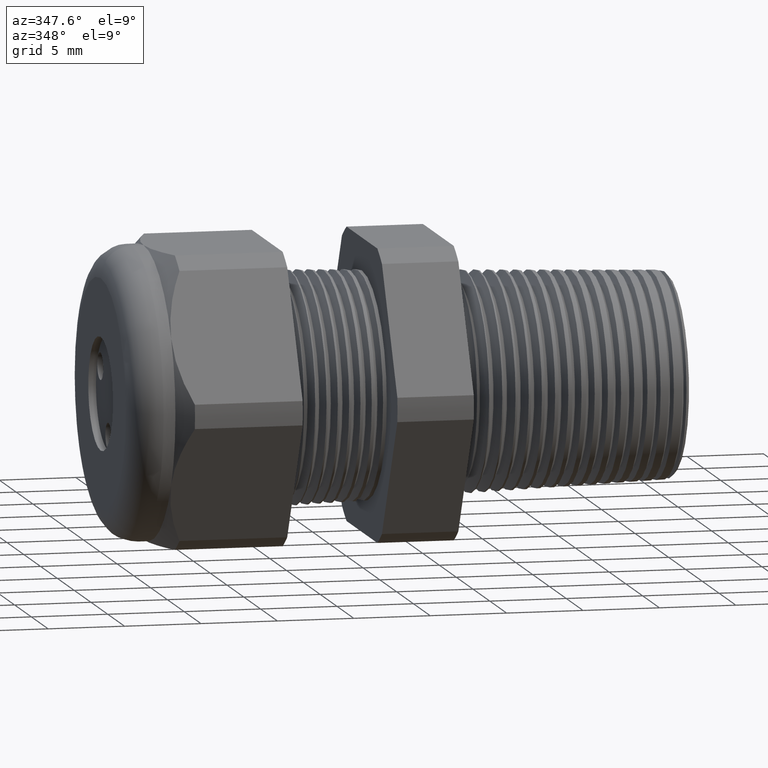
[diagram: clean part render]
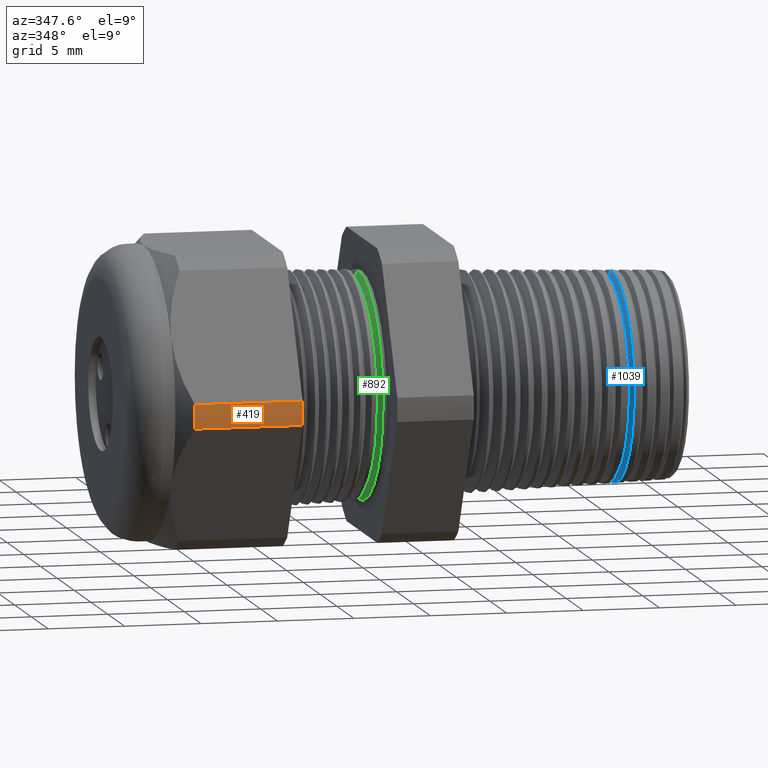
[diagram: same view with three faces highlighted in distinct colors, each labeled with its STEP entity id]
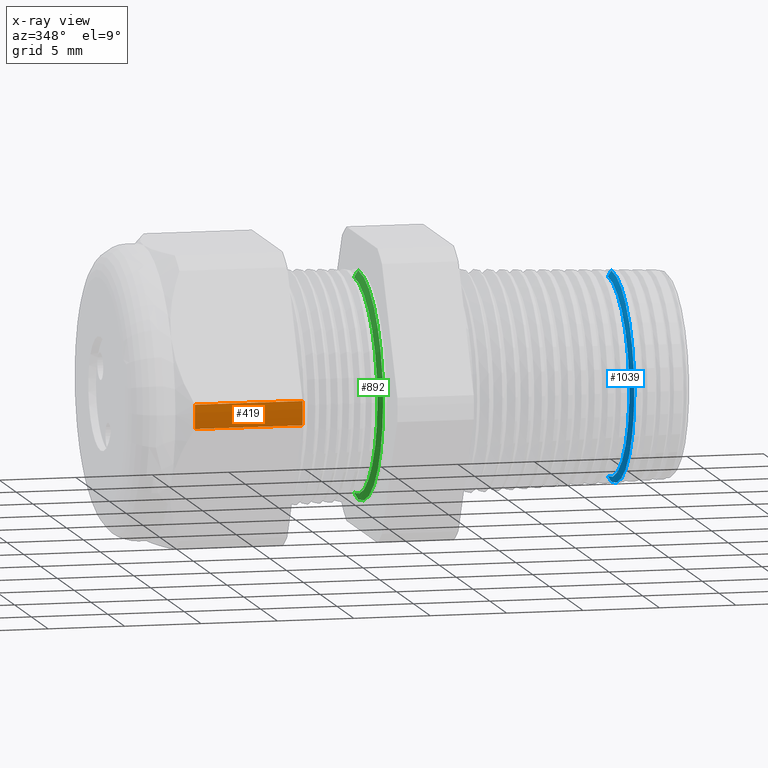
[diagram: x-ray of the same camera — body ghosted, the three highlighted faces saturated]
A machine part, auxiliary view with three faces highlighted in distinct colors.
The next image is the same camera in x-ray (body ghosted, the three faces saturated) — at least one of them is partly hidden behind the body in this view.
Their STEP definitions:

[orange] entity #419 — the highlighted cylindrical surface (partial cylindrical patch) has radius 10.5728 mm, axis along (-1, 0, 0).
#356 = VERTEX_POINT ( 'NONE', #2415 ) ;
#397 = ORIENTED_EDGE ( 'NONE', *, *, #398, .T. ) ;
#398 = EDGE_CURVE ( 'NONE', #5393, #410, #2514, .T. ) ;
#399 = ORIENTED_EDGE ( 'NONE', *, *, #409, .F. ) ;
#400 = ORIENTED_EDGE ( 'NONE', *, *, #401, .F. ) ;
#401 = EDGE_CURVE ( 'NONE', #477, #356, #2495, .T. ) ;
#409 = EDGE_CURVE ( 'NONE', #356, #410, #2532, .T. ) ;
#410 = VERTEX_POINT ( 'NONE', #2528 ) ;
#419 = ADVANCED_FACE ( 'NONE', ( #2564 ), #2563, .T. ) ;
#420 = EDGE_LOOP ( 'NONE', ( #421, #397, #399, #400 ) ) ;
#421 = ORIENTED_EDGE ( 'NONE', *, *, #422, .T. ) ;
#422 = EDGE_CURVE ( 'NONE', #477, #5393, #2562, .T. ) ;
#477 = VERTEX_POINT ( 'NONE', #2681 ) ;
#2415 = CARTESIAN_POINT ( 'NONE',  ( -0.7508661417322833900, -0.4150909474475088000, -0.03104138925901222700 ) ) ;
#2491 = DIRECTION ( 'NONE',  ( 0.0000000000000000000, 0.0000000000000000000, -1.000000000000000000 ) ) ;
#2492 = DIRECTION ( 'NONE',  ( 1.000000000000000000, 0.0000000000000000000, 0.0000000000000000000 ) ) ;
#2493 = CARTESIAN_POINT ( 'NONE',  ( -0.7508661417322833900, 0.0000000000000000000, 0.0000000000000000000 ) ) ;
#2494 = AXIS2_PLACEMENT_3D ( 'NONE', #2493, #2492, #2491 ) ;
#2495 = CIRCLE ( 'NONE', #2494, 0.4162500000000001200 ) ;
#2496 = DIRECTION ( 'NONE',  ( 0.0000000000000000000, 0.0000000000000000000, -1.000000000000000000 ) ) ;
#2497 = DIRECTION ( 'NONE',  ( 1.000000000000000000, 0.0000000000000000000, 0.0000000000000000000 ) ) ;
#2498 = CARTESIAN_POINT ( 'NONE',  ( -1.028513779527559000, 0.0000000000000000000, 0.0000000000000000000 ) ) ;
#2499 = AXIS2_PLACEMENT_3D ( 'NONE', #2498, #2497, #2496 ) ;
#2514 = CIRCLE ( 'NONE', #2499, 0.4162500000000001200 ) ;
#2528 = CARTESIAN_POINT ( 'NONE',  ( -1.028513779527559000, -0.4150909474475088500, -0.03104138925901223400 ) ) ;
#2529 = DIRECTION ( 'NONE',  ( -1.000000000000000000, 0.0000000000000000000, 0.0000000000000000000 ) ) ;
#2530 = VECTOR ( 'NONE', #2529, 39.37007874015748100 ) ;
#2531 = CARTESIAN_POINT ( 'NONE',  ( 0.2800000000000000300, -0.4150909474475088000, -0.03104138925901222700 ) ) ;
#2532 = LINE ( 'NONE', #2531, #2530 ) ;
#2555 = DIRECTION ( 'NONE',  ( -1.000000000000000000, 0.0000000000000000000, 0.0000000000000000000 ) ) ;
#2556 = VECTOR ( 'NONE', #2555, 39.37007874015748100 ) ;
#2557 = CARTESIAN_POINT ( 'NONE',  ( 0.2800000000000000300, -0.4150909474475088500, 0.03104138925901205400 ) ) ;
#2558 = DIRECTION ( 'NONE',  ( 0.0000000000000000000, 0.0000000000000000000, 1.000000000000000000 ) ) ;
#2559 = DIRECTION ( 'NONE',  ( -1.000000000000000000, 0.0000000000000000000, 0.0000000000000000000 ) ) ;
#2560 = CARTESIAN_POINT ( 'NONE',  ( 0.2800000000000000300, 0.0000000000000000000, 0.0000000000000000000 ) ) ;
#2561 = AXIS2_PLACEMENT_3D ( 'NONE', #2560, #2559, #2558 ) ;
#2562 = LINE ( 'NONE', #2557, #2556 ) ;
#2563 = CYLINDRICAL_SURFACE ( 'NONE', #2561, 0.4162500000000001200 ) ;
#2564 = FACE_OUTER_BOUND ( 'NONE', #420, .T. ) ;
#2681 = CARTESIAN_POINT ( 'NONE',  ( -0.7508661417322833900, -0.4150909474475088500, 0.03104138925901205400 ) ) ;
#4985 = CARTESIAN_POINT ( 'NONE',  ( -1.028513779527559000, -0.4150909474475088500, 0.03104138925901204700 ) ) ;
#5393 = VERTEX_POINT ( 'NONE', #4985 ) ;

[blue] entity #1039 — the highlighted conical surface has half-angle 58 deg.
#234 = EDGE_CURVE ( 'NONE', #1338, #1416, #2156, .T. ) ;
#1036 = EDGE_CURVE ( 'NONE', #1413, #1412, #3470, .T. ) ;
#1039 = ADVANCED_FACE ( 'NONE', ( #3466 ), #3465, .T. ) ;
#1040 = EDGE_LOOP ( 'NONE', ( #1041, #1042, #1043, #1096 ) ) ;
#1041 = ORIENTED_EDGE ( 'NONE', *, *, #1415, .F. ) ;
#1042 = ORIENTED_EDGE ( 'NONE', *, *, #1036, .T. ) ;
#1043 = ORIENTED_EDGE ( 'NONE', *, *, #1431, .T. ) ;
#1096 = ORIENTED_EDGE ( 'NONE', *, *, #234, .T. ) ;
#1338 = VERTEX_POINT ( 'NONE', #3996 ) ;
#1412 = VERTEX_POINT ( 'NONE', #4159 ) ;
#1413 = VERTEX_POINT ( 'NONE', #4158 ) ;
#1415 = EDGE_CURVE ( 'NONE', #1413, #1416, #4157, .T. ) ;
#1416 = VERTEX_POINT ( 'NONE', #4153 ) ;
#1431 = EDGE_CURVE ( 'NONE', #1412, #1338, #4198, .T. ) ;
#2152 = DIRECTION ( 'NONE',  ( 0.0000000000000000000, 0.0000000000000000000, -1.000000000000000000 ) ) ;
#2153 = DIRECTION ( 'NONE',  ( -1.000000000000000000, 0.0000000000000000000, 0.0000000000000000000 ) ) ;
#2154 = CARTESIAN_POINT ( 'NONE',  ( 0.1356508413671547200, 0.0000000000000000000, 0.0000000000000000000 ) ) ;
#2155 = AXIS2_PLACEMENT_3D ( 'NONE', #2154, #2153, #2152 ) ;
#2156 = CIRCLE ( 'NONE', #2155, 0.2690421447826712400 ) ;
#3465 = CONICAL_SURFACE ( 'NONE', #3528, 0.2540184132628081100, 1.012290966156729400 ) ;
#3466 = FACE_OUTER_BOUND ( 'NONE', #1040, .T. ) ;
#3467 = DIRECTION ( 'NONE',  ( 0.0000000000000000000, 0.0000000000000000000, -1.000000000000000000 ) ) ;
#3468 = DIRECTION ( 'NONE',  ( 1.000000000000000000, 0.0000000000000000000, 0.0000000000000000000 ) ) ;
#3469 = AXIS2_PLACEMENT_3D ( 'NONE', #3475, #3468, #3467 ) ;
#3470 = CIRCLE ( 'NONE', #3469, 0.2540184132628081100 ) ;
#3475 = CARTESIAN_POINT ( 'NONE',  ( 0.1262629719890789900, 0.0000000000000000000, 0.0000000000000000000 ) ) ;
#3525 = DIRECTION ( 'NONE',  ( 0.0000000000000000000, 0.0000000000000000000, -1.000000000000000000 ) ) ;
#3526 = DIRECTION ( 'NONE',  ( 1.000000000000000000, 0.0000000000000000000, 0.0000000000000000000 ) ) ;
#3527 = CARTESIAN_POINT ( 'NONE',  ( 0.1262629719890789900, 0.0000000000000000000, 0.0000000000000000000 ) ) ;
#3528 = AXIS2_PLACEMENT_3D ( 'NONE', #3527, #3526, #3525 ) ;
#3996 = CARTESIAN_POINT ( 'NONE',  ( 0.1356508413671547200, 3.294816014438371000E-017, -0.2690421447826712400 ) ) ;
#4153 = CARTESIAN_POINT ( 'NONE',  ( 0.1356508413671547200, 0.0000000000000000000, 0.2690421447826712400 ) ) ;
#4154 = DIRECTION ( 'NONE',  ( 0.5299192642331894700, 1.038559386480985500E-016, 0.8480480961564356200 ) ) ;
#4155 = VECTOR ( 'NONE', #4154, 39.37007874015749600 ) ;
#4156 = CARTESIAN_POINT ( 'NONE',  ( 0.1262629719890789900, 3.110828367267874700E-017, 0.2540184132628081100 ) ) ;
#4157 = LINE ( 'NONE', #4156, #4155 ) ;
#4158 = CARTESIAN_POINT ( 'NONE',  ( 0.1262629719890789900, 0.0000000000000000000, 0.2540184132628081100 ) ) ;
#4159 = CARTESIAN_POINT ( 'NONE',  ( 0.1262629719890789900, 3.206607988094357700E-017, -0.2540184132628081100 ) ) ;
#4195 = DIRECTION ( 'NONE',  ( 0.5299192642331894700, 0.0000000000000000000, -0.8480480961564356200 ) ) ;
#4196 = VECTOR ( 'NONE', #4195, 39.37007874015749600 ) ;
#4197 = CARTESIAN_POINT ( 'NONE',  ( 0.1262629719890789900, 0.0000000000000000000, -0.2540184132628081100 ) ) ;
#4198 = LINE ( 'NONE', #4197, #4196 ) ;

[green] entity #892 — the highlighted conical surface has half-angle 58 deg.
#606 = EDGE_CURVE ( 'NONE', #1705, #1702, #2946, .T. ) ;
#874 = ORIENTED_EDGE ( 'NONE', *, *, #606, .T. ) ;
#889 = EDGE_CURVE ( 'NONE', #1699, #1698, #3272, .T. ) ;
#892 = ADVANCED_FACE ( 'NONE', ( #3326 ), #3325, .T. ) ;
#893 = EDGE_LOOP ( 'NONE', ( #894, #895, #896, #874 ) ) ;
#894 = ORIENTED_EDGE ( 'NONE', *, *, #1701, .F. ) ;
#895 = ORIENTED_EDGE ( 'NONE', *, *, #889, .T. ) ;
#896 = ORIENTED_EDGE ( 'NONE', *, *, #1625, .T. ) ;
#1625 = EDGE_CURVE ( 'NONE', #1698, #1705, #4570, .T. ) ;
#1698 = VERTEX_POINT ( 'NONE', #4734 ) ;
#1699 = VERTEX_POINT ( 'NONE', #4733 ) ;
#1701 = EDGE_CURVE ( 'NONE', #1699, #1702, #4732, .T. ) ;
#1702 = VERTEX_POINT ( 'NONE', #4728 ) ;
#1705 = VERTEX_POINT ( 'NONE', #4722 ) ;
#2885 = CARTESIAN_POINT ( 'NONE',  ( -0.5165007497886048300, 0.0000000000000000000, 0.0000000000000000000 ) ) ;
#2943 = DIRECTION ( 'NONE',  ( 0.0000000000000000000, 0.0000000000000000000, -1.000000000000000000 ) ) ;
#2944 = DIRECTION ( 'NONE',  ( -1.000000000000000000, 0.0000000000000000000, 0.0000000000000000000 ) ) ;
#2945 = AXIS2_PLACEMENT_3D ( 'NONE', #2885, #2944, #2943 ) ;
#2946 = CIRCLE ( 'NONE', #2945, 0.2918157801710933300 ) ;
#3272 = CIRCLE ( 'NONE', #3330, 0.2745114984791284800 ) ;
#3320 = DIRECTION ( 'NONE',  ( 0.0000000000000000000, 0.0000000000000000000, -1.000000000000000000 ) ) ;
#3321 = DIRECTION ( 'NONE',  ( 1.000000000000000000, 0.0000000000000000000, 0.0000000000000000000 ) ) ;
#3322 = CARTESIAN_POINT ( 'NONE',  ( -0.5273136650747176600, 0.0000000000000000000, 0.0000000000000000000 ) ) ;
#3323 = AXIS2_PLACEMENT_3D ( 'NONE', #3322, #3321, #3320 ) ;
#3325 = CONICAL_SURFACE ( 'NONE', #3323, 0.2745114984791284800, 1.012290966156727900 ) ;
#3326 = FACE_OUTER_BOUND ( 'NONE', #893, .T. ) ;
#3327 = DIRECTION ( 'NONE',  ( 0.0000000000000000000, 0.0000000000000000000, -1.000000000000000000 ) ) ;
#3328 = DIRECTION ( 'NONE',  ( 1.000000000000000000, 0.0000000000000000000, 0.0000000000000000000 ) ) ;
#3329 = CARTESIAN_POINT ( 'NONE',  ( -0.5273136650747176600, 0.0000000000000000000, 0.0000000000000000000 ) ) ;
#3330 = AXIS2_PLACEMENT_3D ( 'NONE', #3329, #3328, #3327 ) ;
#4567 = DIRECTION ( 'NONE',  ( 0.5299192642331908000, 0.0000000000000000000, -0.8480480961564348400 ) ) ;
#4568 = VECTOR ( 'NONE', #4567, 39.37007874015748100 ) ;
#4569 = CARTESIAN_POINT ( 'NONE',  ( -0.5273136650747176600, 0.0000000000000000000, -0.2745114984791284800 ) ) ;
#4570 = LINE ( 'NONE', #4569, #4568 ) ;
#4722 = CARTESIAN_POINT ( 'NONE',  ( -0.5165007497886048300, 3.573712611272171200E-017, -0.2918157801710933300 ) ) ;
#4728 = CARTESIAN_POINT ( 'NONE',  ( -0.5165007497886048300, 0.0000000000000000000, 0.2918157801710933300 ) ) ;
#4729 = DIRECTION ( 'NONE',  ( 0.5299192642331908000, 1.038559386480984800E-016, 0.8480480961564348400 ) ) ;
#4730 = VECTOR ( 'NONE', #4729, 39.37007874015748100 ) ;
#4731 = CARTESIAN_POINT ( 'NONE',  ( -0.5273136650747176600, 3.361796279416081600E-017, 0.2745114984791284800 ) ) ;
#4732 = LINE ( 'NONE', #4731, #4730 ) ;
#4733 = CARTESIAN_POINT ( 'NONE',  ( -0.5273136650747176600, 0.0000000000000000000, 0.2745114984791284800 ) ) ;
#4734 = CARTESIAN_POINT ( 'NONE',  ( -0.5273136650747176600, 3.472114913434518900E-017, -0.2745114984791284800 ) ) ;